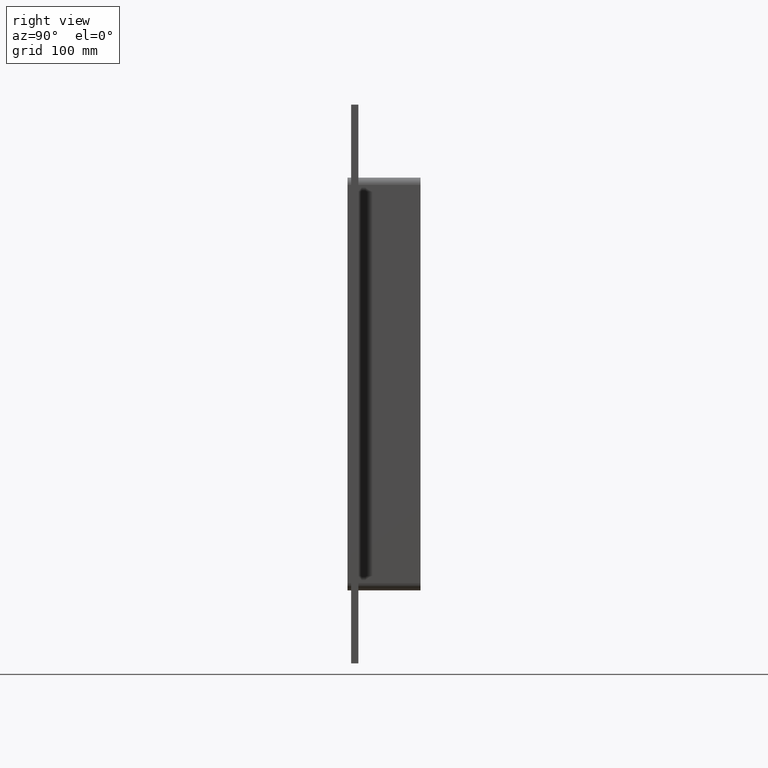
[diagram: clean part render]
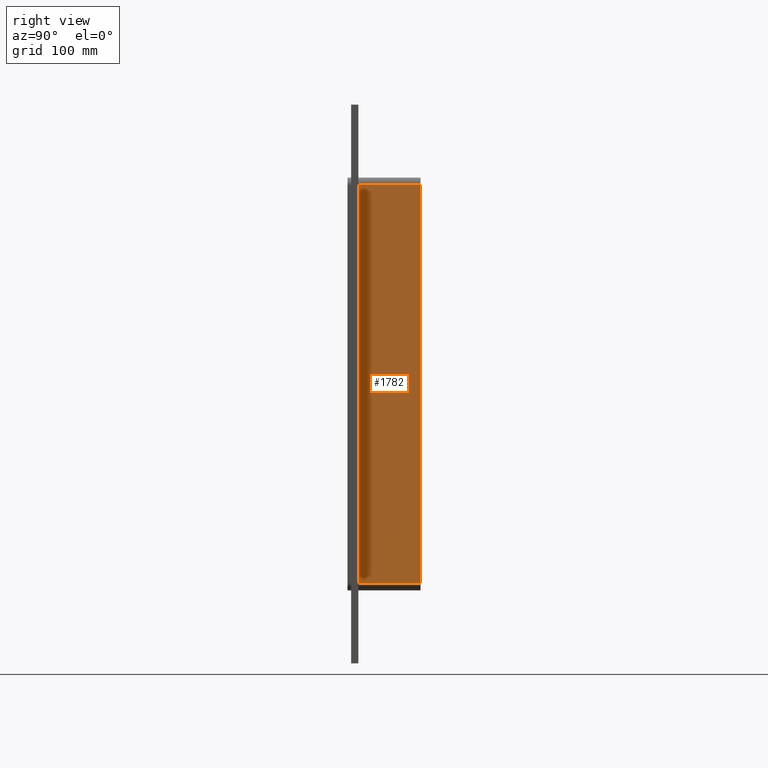
[diagram: same view with one face highlighted and labeled with its STEP entity id]
A machine part, right view. The second image highlights one B-rep face of the part: STEP entity #1782.
In plain terms, the highlighted planar face has unit normal (1, 0, 0).
Its self-contained STEP definition (entity closure, byte-faithful):
#1008=CARTESIAN_POINT('',(131.50000000000003,57.0,-163.5));
#1009=VERTEX_POINT('',#1008);
#1059=CARTESIAN_POINT('',(131.50000000000003,57.0,163.5));
#1060=VERTEX_POINT('',#1059);
#1068=CARTESIAN_POINT('',(131.50000000000003,57.0,163.5));
#1069=DIRECTION('',(0.0,0.0,-1.0));
#1070=VECTOR('',#1069,327.0);
#1071=LINE('',#1068,#1070);
#1072=EDGE_CURVE('',#1060,#1009,#1071,.T.);
#1399=CARTESIAN_POINT('',(131.50000000000003,6.000000000000001,-163.5));
#1400=VERTEX_POINT('',#1399);
#1408=CARTESIAN_POINT('',(131.50000000000003,6.000000000000001,163.5));
#1409=VERTEX_POINT('',#1408);
#1410=CARTESIAN_POINT('',(131.50000000000003,6.000000000000001,163.5));
#1411=DIRECTION('',(0.0,0.0,-1.0));
#1412=VECTOR('',#1411,327.0);
#1413=LINE('',#1410,#1412);
#1414=EDGE_CURVE('',#1409,#1400,#1413,.T.);
#1726=CARTESIAN_POINT('',(131.50000000000003,6.000000000000001,163.5));
#1727=DIRECTION('',(0.0,1.0,0.0));
#1728=VECTOR('',#1727,51.0);
#1729=LINE('',#1726,#1728);
#1730=EDGE_CURVE('',#1409,#1060,#1729,.T.);
#1766=CARTESIAN_POINT('',(131.50000000000003,0.0,169.50000000000003));
#1767=DIRECTION('',(1.0,0.0,0.0));
#1768=DIRECTION('',(0.0,0.0,-1.0));
#1769=AXIS2_PLACEMENT_3D('',#1766,#1767,#1768);
#1770=PLANE('',#1769);
#1771=ORIENTED_EDGE('',*,*,#1414,.T.);
#1772=CARTESIAN_POINT('',(131.50000000000003,57.0,-163.5));
#1773=DIRECTION('',(0.0,-1.0,0.0));
#1774=VECTOR('',#1773,51.0);
#1775=LINE('',#1772,#1774);
#1776=EDGE_CURVE('',#1009,#1400,#1775,.T.);
#1777=ORIENTED_EDGE('',*,*,#1776,.F.);
#1778=ORIENTED_EDGE('',*,*,#1072,.F.);
#1779=ORIENTED_EDGE('',*,*,#1730,.F.);
#1780=EDGE_LOOP('',(#1771,#1777,#1778,#1779));
#1781=FACE_OUTER_BOUND('',#1780,.T.);
#1782=ADVANCED_FACE('',(#1781),#1770,.T.);